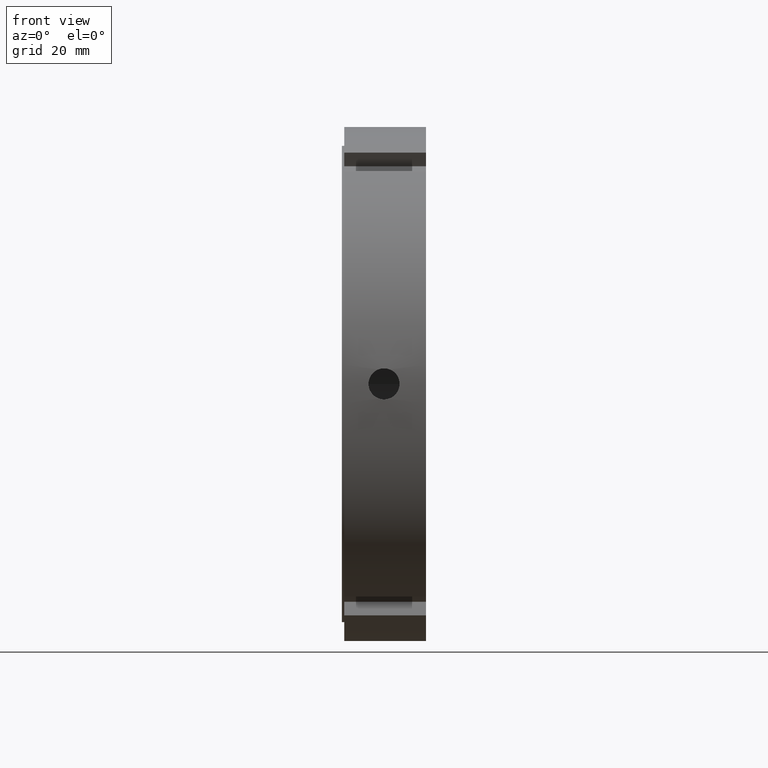
[diagram: clean part render]
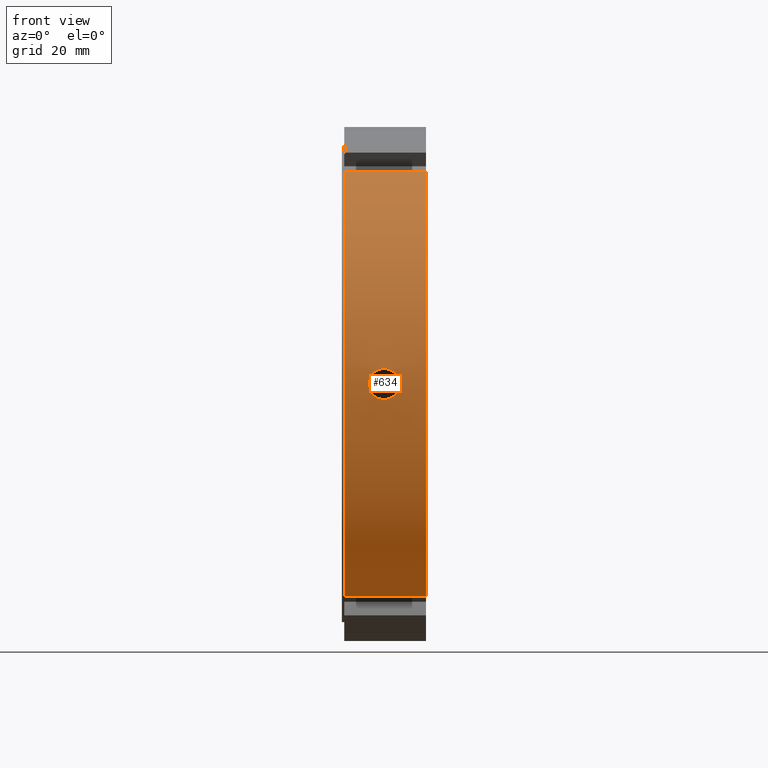
[diagram: same view with one face highlighted and labeled with its STEP entity id]
A machine part, front view. The second image highlights one B-rep face of the part: STEP entity #634.
In plain terms, the highlighted cylindrical surface (partial cylindrical patch) has radius 55 mm, axis along (1, 0, 0).
Its self-contained STEP definition (entity closure, byte-faithful):
#75=CARTESIAN_POINT('',(0.499999999999985,-30.891277918942741,-45.505262866339336));
#76=VERTEX_POINT('',#75);
#91=CARTESIAN_POINT('',(17.999999999999989,-30.891277918942741,-45.505262866339336));
#92=VERTEX_POINT('',#91);
#99=CARTESIAN_POINT('',(0.499999999999984,-30.891277918942745,-45.505262866339336));
#100=DIRECTION('',(1.0,0.0,0.0));
#101=VECTOR('',#100,17.500000000000007);
#102=LINE('',#99,#101);
#103=EDGE_CURVE('',#76,#92,#102,.T.);
#303=CARTESIAN_POINT('',(0.499999999999985,-30.891277918942702,45.505262866339358));
#304=VERTEX_POINT('',#303);
#313=CARTESIAN_POINT('',(17.999999999999989,-30.891277918942702,45.505262866339358));
#314=VERTEX_POINT('',#313);
#315=CARTESIAN_POINT('',(17.999999999999989,-30.891277918942706,45.505262866339358));
#316=DIRECTION('',(-1.0,0.0,0.0));
#317=VECTOR('',#316,17.500000000000007);
#318=LINE('',#315,#317);
#319=EDGE_CURVE('',#314,#304,#318,.T.);
#499=CARTESIAN_POINT('',(17.999999999999989,0.0,0.0));
#500=DIRECTION('',(1.0,0.0,0.0));
#501=DIRECTION('',(0.0,1.0,0.0));
#502=AXIS2_PLACEMENT_3D('',#499,#500,#501);
#503=CIRCLE('',#502,55.0);
#504=EDGE_CURVE('',#314,#92,#503,.T.);
#576=CARTESIAN_POINT('',(9.249999999999988,0.0,0.0));
#577=DIRECTION('',(1.0,0.0,0.0));
#578=DIRECTION('',(0.0,1.0,0.0));
#579=AXIS2_PLACEMENT_3D('',#576,#577,#578);
#580=CYLINDRICAL_SURFACE('',#579,55.0);
#581=ORIENTED_EDGE('',*,*,#103,.T.);
#582=ORIENTED_EDGE('',*,*,#504,.F.);
#583=ORIENTED_EDGE('',*,*,#319,.T.);
#584=CARTESIAN_POINT('',(0.499999999999985,0.0,0.0));
#585=DIRECTION('',(1.0,0.0,0.0));
#586=DIRECTION('',(0.0,1.0,0.0));
#587=AXIS2_PLACEMENT_3D('',#584,#585,#586);
#588=CIRCLE('',#587,55.0);
#589=EDGE_CURVE('',#304,#76,#588,.T.);
#590=ORIENTED_EDGE('',*,*,#589,.T.);
#591=EDGE_LOOP('',(#581,#582,#583,#590));
#592=FACE_OUTER_BOUND('',#591,.T.);
#593=CARTESIAN_POINT('',(8.999999999999989,-54.899493146567394,3.323500000000000));
#594=VERTEX_POINT('',#593);
#595=CARTESIAN_POINT('',(8.999999999999988,-54.899493146567394,3.323500000000000));
#596=CARTESIAN_POINT('',(9.417415254868967,-54.899493146567394,3.323500000000000));
#597=CARTESIAN_POINT('',(9.862583720516918,-54.904743650179398,3.240058641673369));
#598=CARTESIAN_POINT('',(10.681395329114467,-54.923709950902335,2.900851681319184));
#599=CARTESIAN_POINT('',(11.055047103038254,-54.937152159500556,2.645091671508717));
#600=CARTESIAN_POINT('',(11.645091538414086,-54.962386939846311,2.055047236132886));
#601=CARTESIAN_POINT('',(11.900851649529358,-54.975818433117524,1.681395402369042));
#602=CARTESIAN_POINT('',(12.240058692793204,-54.994760226960643,0.862583600601609));
#603=CARTESIAN_POINT('',(12.323499999999989,-55.0,0.417415066558714));
#604=CARTESIAN_POINT('',(12.323499999999989,-55.0,-0.417415066558713));
#605=CARTESIAN_POINT('',(12.240058692793204,-54.994760226960643,-0.862583600601609));
#606=CARTESIAN_POINT('',(11.900851649529358,-54.975818433117524,-1.681395402369041));
#607=CARTESIAN_POINT('',(11.645091538414086,-54.962386939846311,-2.055047236132885));
#608=CARTESIAN_POINT('',(11.055047103038254,-54.937152159500556,-2.645091671508717));
#609=CARTESIAN_POINT('',(10.681395329114467,-54.923709950902335,-2.900851681319184));
#610=CARTESIAN_POINT('',(9.862583720516918,-54.904743650179398,-3.240058641673369));
#611=CARTESIAN_POINT('',(9.417415254868969,-54.899493146567394,-3.323500000000000));
#612=CARTESIAN_POINT('',(8.582584745131010,-54.899493146567394,-3.323500000000000));
#613=CARTESIAN_POINT('',(8.137416279483059,-54.904743650179398,-3.240058641673369));
#614=CARTESIAN_POINT('',(7.318604670885510,-54.923709950902335,-2.900851681319184));
#615=CARTESIAN_POINT('',(6.944952896961725,-54.937152159500556,-2.645091671508717));
#616=CARTESIAN_POINT('',(6.354908461585893,-54.962386939846311,-2.055047236132886));
#617=CARTESIAN_POINT('',(6.099148350470619,-54.975818433117524,-1.681395402369041));
#618=CARTESIAN_POINT('',(5.759941307206776,-54.994760226960643,-0.862583600601610));
#619=CARTESIAN_POINT('',(5.676499999999988,-55.0,-0.417415066558714));
#620=CARTESIAN_POINT('',(5.676499999999988,-55.0,0.417415066558712));
#621=CARTESIAN_POINT('',(5.759941307206775,-54.994760226960643,0.862583600601607));
#622=CARTESIAN_POINT('',(6.099148350470617,-54.975818433117524,1.681395402369040));
#623=CARTESIAN_POINT('',(6.354908461585893,-54.962386939846311,2.055047236132885));
#624=CARTESIAN_POINT('',(6.944952896961723,-54.937152159500556,2.645091671508716));
#625=CARTESIAN_POINT('',(7.318604670885508,-54.923709950902335,2.900851681319183));
#626=CARTESIAN_POINT('',(8.137416279483059,-54.904743650179398,3.240058641673369));
#627=CARTESIAN_POINT('',(8.582584745131008,-54.899493146567394,3.323500000000000));
#628=CARTESIAN_POINT('',(8.999999999999988,-54.899493146567394,3.323500000000000));
#629=B_SPLINE_CURVE_WITH_KNOTS('',3,(#595,#596,#597,#598,#599,#600,#601,#602,#603,#604,#605,#606,#607,#608,#609,#610,#611,#612,#613,#614,#615,#616,#617,#618,#619,#620,#621,#622,#623,#624,#625,#626,#627,#628),.UNSPECIFIED.,.T.,.U.,(4,2,2,2,2,2,2,2,2,2,2,2,2,2,2,2,4),(0.0,0.125224576460694,0.250449152921388,0.375673672889002,0.500898192856616,0.626122712824230,0.751347232791844,0.876571809252537,1.001796385713231,1.127020962173925,1.252245538634619,1.377470058602233,1.502694578569847,1.627919098537461,1.753143618505075,1.878368194965769,2.003592771426463),.UNSPECIFIED.);
#630=EDGE_CURVE('',#594,#594,#629,.T.);
#631=ORIENTED_EDGE('',*,*,#630,.T.);
#632=EDGE_LOOP('',(#631));
#633=FACE_BOUND('',#632,.T.);
#634=ADVANCED_FACE('',(#592,#633),#580,.T.);